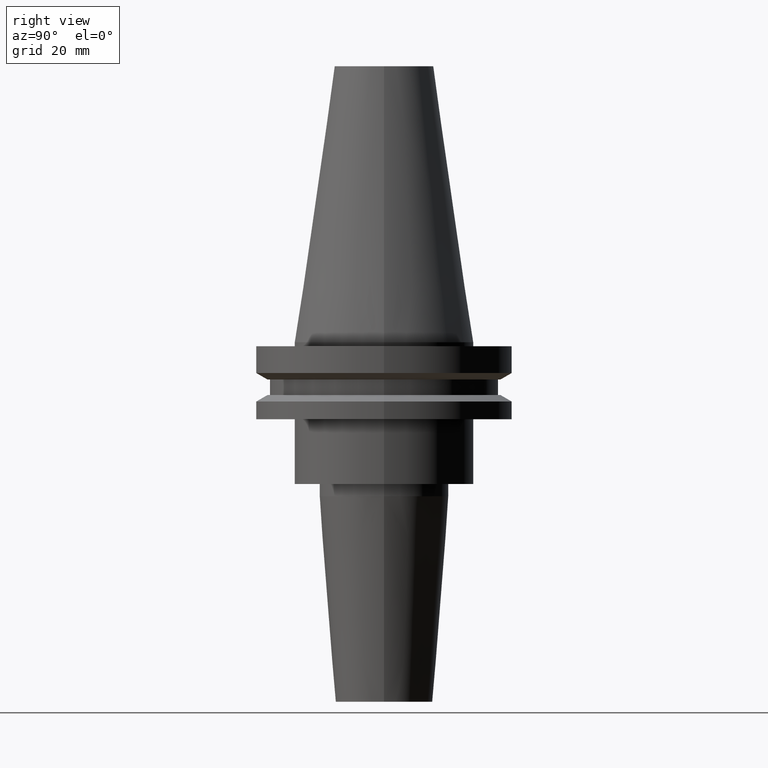
[diagram: clean part render]
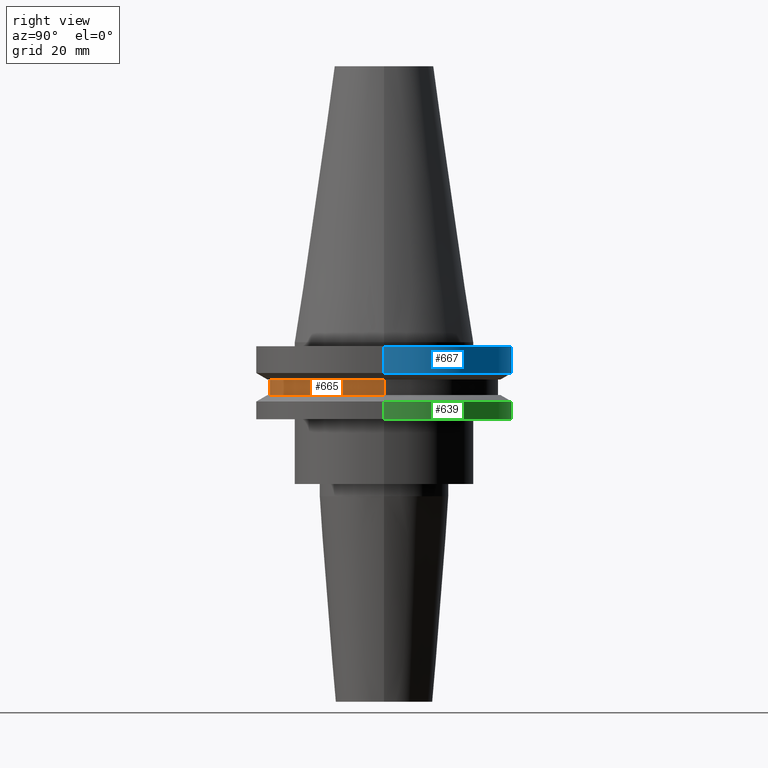
[diagram: same view with three faces highlighted in distinct colors, each labeled with its STEP entity id]
A machine part, right view with three faces highlighted in distinct colors.
Their STEP definitions:

[orange] entity #665 — the highlighted cylindrical surface (partial cylindrical patch) has radius 28.18 mm, axis along (-0, -0, 1).
#3 = ORIENTED_EDGE ( 'NONE', *, *, #603, .T. ) ;
#4 = CARTESIAN_POINT ( 'NONE',  ( 28.17999999999999972, 0.000000000000000000, 68.25000000000000000 ) ) ;
#18 = CARTESIAN_POINT ( 'NONE',  ( 0.000000000000000000, 0.000000000000000000, -9.204999999999991189 ) ) ;
#24 = VECTOR ( 'NONE', #831, 1000.000000000000000 ) ;
#33 = ORIENTED_EDGE ( 'NONE', *, *, #124, .F. ) ;
#57 = FACE_OUTER_BOUND ( 'NONE', #597, .T. ) ;
#62 = LINE ( 'NONE', #565, #24 ) ;
#81 = DIRECTION ( 'NONE',  ( 1.000000000000000000, 0.000000000000000000, 0.000000000000000000 ) ) ;
#124 = EDGE_CURVE ( 'NONE', #332, #497, #62, .T. ) ;
#201 = ORIENTED_EDGE ( 'NONE', *, *, #762, .F. ) ;
#229 = DIRECTION ( 'NONE',  ( 1.000000000000000000, 0.000000000000000000, 0.000000000000000000 ) ) ;
#259 = DIRECTION ( 'NONE',  ( -0.000000000000000000, -0.000000000000000000, 1.000000000000000000 ) ) ;
#270 = VERTEX_POINT ( 'NONE', #291 ) ;
#291 = CARTESIAN_POINT ( 'NONE',  ( 28.17999999999999972, 0.000000000000000000, -9.204999999999991189 ) ) ;
#322 = CYLINDRICAL_SURFACE ( 'NONE', #694, 28.17999999999999972 ) ;
#329 = CIRCLE ( 'NONE', #780, 28.17999999999999972 ) ;
#332 = VERTEX_POINT ( 'NONE', #550 ) ;
#434 = DIRECTION ( 'NONE',  ( -0.000000000000000000, -0.000000000000000000, 1.000000000000000000 ) ) ;
#488 = EDGE_CURVE ( 'NONE', #332, #593, #329, .T. ) ;
#497 = VERTEX_POINT ( 'NONE', #825 ) ;
#515 = DIRECTION ( 'NONE',  ( 1.000000000000000000, 0.000000000000000000, 0.000000000000000000 ) ) ;
#520 = LINE ( 'NONE', #4, #610 ) ;
#538 = ORIENTED_EDGE ( 'NONE', *, *, #488, .T. ) ;
#550 = CARTESIAN_POINT ( 'NONE',  ( -28.17999999999999972, 3.451054679997241634E-15, -13.05499999999999794 ) ) ;
#565 = CARTESIAN_POINT ( 'NONE',  ( -28.17999999999999972, 3.451054679997241634E-15, 68.25000000000000000 ) ) ;
#593 = VERTEX_POINT ( 'NONE', #792 ) ;
#597 = EDGE_LOOP ( 'NONE', ( #33, #538, #3, #201 ) ) ;
#603 = EDGE_CURVE ( 'NONE', #593, #270, #520, .T. ) ;
#606 = DIRECTION ( 'NONE',  ( -0.000000000000000000, -0.000000000000000000, 1.000000000000000000 ) ) ;
#610 = VECTOR ( 'NONE', #785, 1000.000000000000000 ) ;
#665 = ADVANCED_FACE ( 'NONE', ( #57 ), #322, .T. ) ;
#668 = CIRCLE ( 'NONE', #751, 28.17999999999999972 ) ;
#694 = AXIS2_PLACEMENT_3D ( 'NONE', #845, #259, #515 ) ;
#751 = AXIS2_PLACEMENT_3D ( 'NONE', #18, #606, #81 ) ;
#760 = CARTESIAN_POINT ( 'NONE',  ( 0.000000000000000000, 0.000000000000000000, -13.05499999999999794 ) ) ;
#762 = EDGE_CURVE ( 'NONE', #497, #270, #668, .T. ) ;
#780 = AXIS2_PLACEMENT_3D ( 'NONE', #760, #434, #229 ) ;
#785 = DIRECTION ( 'NONE',  ( -0.000000000000000000, -0.000000000000000000, 1.000000000000000000 ) ) ;
#792 = CARTESIAN_POINT ( 'NONE',  ( 28.17999999999999972, 0.000000000000000000, -13.05499999999999794 ) ) ;
#825 = CARTESIAN_POINT ( 'NONE',  ( -28.17999999999999972, 3.451054679997241634E-15, -9.204999999999991189 ) ) ;
#831 = DIRECTION ( 'NONE',  ( -0.000000000000000000, -0.000000000000000000, 1.000000000000000000 ) ) ;
#845 = CARTESIAN_POINT ( 'NONE',  ( 0.000000000000000000, 0.000000000000000000, 68.25000000000000000 ) ) ;

[blue] entity #667 — the highlighted cylindrical surface (partial cylindrical patch) has radius 31.75 mm, axis along (-0, -0, 1).
#5 = EDGE_CURVE ( 'NONE', #88, #25, #452, .T. ) ;
#25 = VERTEX_POINT ( 'NONE', #770 ) ;
#34 = CARTESIAN_POINT ( 'NONE',  ( 0.000000000000000000, 0.000000000000000000, -7.605276606597335842 ) ) ;
#41 = DIRECTION ( 'NONE',  ( 1.000000000000000000, 0.000000000000000000, 0.000000000000000000 ) ) ;
#59 = ORIENTED_EDGE ( 'NONE', *, *, #5, .F. ) ;
#88 = VERTEX_POINT ( 'NONE', #516 ) ;
#89 = LINE ( 'NONE', #801, #119 ) ;
#119 = VECTOR ( 'NONE', #280, 1000.000000000000000 ) ;
#135 = VERTEX_POINT ( 'NONE', #631 ) ;
#151 = CIRCLE ( 'NONE', #723, 31.75000000000000000 ) ;
#154 = DIRECTION ( 'NONE',  ( -0.000000000000000000, -0.000000000000000000, 1.000000000000000000 ) ) ;
#187 = EDGE_CURVE ( 'NONE', #88, #802, #249, .T. ) ;
#222 = DIRECTION ( 'NONE',  ( 1.000000000000000000, 0.000000000000000000, 0.000000000000000000 ) ) ;
#249 = CIRCLE ( 'NONE', #739, 31.75000000000000000 ) ;
#267 = CYLINDRICAL_SURFACE ( 'NONE', #545, 31.75000000000000000 ) ;
#280 = DIRECTION ( 'NONE',  ( -0.000000000000000000, -0.000000000000000000, 1.000000000000000000 ) ) ;
#310 = CARTESIAN_POINT ( 'NONE',  ( 31.75000000000000000, 0.000000000000000000, 68.25000000000000000 ) ) ;
#380 = ORIENTED_EDGE ( 'NONE', *, *, #730, .T. ) ;
#411 = DIRECTION ( 'NONE',  ( -0.000000000000000000, -0.000000000000000000, 1.000000000000000000 ) ) ;
#452 = LINE ( 'NONE', #310, #729 ) ;
#459 = CARTESIAN_POINT ( 'NONE',  ( 0.000000000000000000, 0.000000000000000000, 68.25000000000000000 ) ) ;
#461 = ORIENTED_EDGE ( 'NONE', *, *, #187, .T. ) ;
#464 = DIRECTION ( 'NONE',  ( 1.000000000000000000, 0.000000000000000000, 0.000000000000000000 ) ) ;
#468 = EDGE_CURVE ( 'NONE', #25, #135, #151, .T. ) ;
#516 = CARTESIAN_POINT ( 'NONE',  ( 31.75000000000000000, 0.000000000000000000, -7.605276606597335842 ) ) ;
#545 = AXIS2_PLACEMENT_3D ( 'NONE', #459, #154, #464 ) ;
#574 = DIRECTION ( 'NONE',  ( -0.000000000000000000, -0.000000000000000000, 1.000000000000000000 ) ) ;
#614 = DIRECTION ( 'NONE',  ( -0.000000000000000000, -0.000000000000000000, 1.000000000000000000 ) ) ;
#631 = CARTESIAN_POINT ( 'NONE',  ( -31.75000000000000000, 3.888253587292846476E-15, -1.000000000000000888 ) ) ;
#653 = FACE_OUTER_BOUND ( 'NONE', #813, .T. ) ;
#667 = ADVANCED_FACE ( 'NONE', ( #653 ), #267, .T. ) ;
#723 = AXIS2_PLACEMENT_3D ( 'NONE', #837, #614, #41 ) ;
#729 = VECTOR ( 'NONE', #574, 1000.000000000000000 ) ;
#730 = EDGE_CURVE ( 'NONE', #802, #135, #89, .T. ) ;
#739 = AXIS2_PLACEMENT_3D ( 'NONE', #34, #411, #222 ) ;
#770 = CARTESIAN_POINT ( 'NONE',  ( 31.75000000000000000, 0.000000000000000000, -1.000000000000000888 ) ) ;
#801 = CARTESIAN_POINT ( 'NONE',  ( -31.75000000000000000, 3.888253587292846476E-15, 68.25000000000000000 ) ) ;
#802 = VERTEX_POINT ( 'NONE', #832 ) ;
#813 = EDGE_LOOP ( 'NONE', ( #461, #380, #835, #59 ) ) ;
#832 = CARTESIAN_POINT ( 'NONE',  ( -31.75000000000000000, 3.888253587292846476E-15, -7.605276606597335842 ) ) ;
#835 = ORIENTED_EDGE ( 'NONE', *, *, #468, .F. ) ;
#837 = CARTESIAN_POINT ( 'NONE',  ( 0.000000000000000000, 0.000000000000000000, -1.000000000000000888 ) ) ;

[green] entity #639 — the highlighted cylindrical surface (partial cylindrical patch) has radius 31.75 mm, axis along (-0, -0, 1).
#1 = CARTESIAN_POINT ( 'NONE',  ( 0.000000000000000000, 0.000000000000000000, -14.65472339340266572 ) ) ;
#22 = DIRECTION ( 'NONE',  ( -0.000000000000000000, -0.000000000000000000, 1.000000000000000000 ) ) ;
#71 = DIRECTION ( 'NONE',  ( -0.000000000000000000, -0.000000000000000000, 1.000000000000000000 ) ) ;
#99 = CARTESIAN_POINT ( 'NONE',  ( 31.74999999999999289, 0.000000000000000000, -19.04999999999999716 ) ) ;
#127 = DIRECTION ( 'NONE',  ( -0.000000000000000000, -0.000000000000000000, 1.000000000000000000 ) ) ;
#129 = ORIENTED_EDGE ( 'NONE', *, *, #413, .F. ) ;
#132 = DIRECTION ( 'NONE',  ( 1.000000000000000000, 0.000000000000000000, 0.000000000000000000 ) ) ;
#138 = AXIS2_PLACEMENT_3D ( 'NONE', #529, #377, #132 ) ;
#155 = CARTESIAN_POINT ( 'NONE',  ( -31.75000000000000000, 3.888253587292846476E-15, 68.25000000000000000 ) ) ;
#215 = AXIS2_PLACEMENT_3D ( 'NONE', #395, #71, #333 ) ;
#254 = DIRECTION ( 'NONE',  ( 1.000000000000000000, 0.000000000000000000, 0.000000000000000000 ) ) ;
#279 = ORIENTED_EDGE ( 'NONE', *, *, #660, .F. ) ;
#293 = EDGE_CURVE ( 'NONE', #560, #712, #415, .T. ) ;
#298 = CARTESIAN_POINT ( 'NONE',  ( 31.75000000000000000, 0.000000000000000000, -14.65472339340266572 ) ) ;
#330 = CARTESIAN_POINT ( 'NONE',  ( -31.74999999999999289, 3.888253587292845687E-15, -19.04999999999999716 ) ) ;
#333 = DIRECTION ( 'NONE',  ( 1.000000000000000000, 0.000000000000000000, 0.000000000000000000 ) ) ;
#335 = ORIENTED_EDGE ( 'NONE', *, *, #293, .T. ) ;
#341 = AXIS2_PLACEMENT_3D ( 'NONE', #1, #127, #254 ) ;
#359 = LINE ( 'NONE', #752, #445 ) ;
#365 = DIRECTION ( 'NONE',  ( -0.000000000000000000, -0.000000000000000000, 1.000000000000000000 ) ) ;
#377 = DIRECTION ( 'NONE',  ( -0.000000000000000000, -0.000000000000000000, 1.000000000000000000 ) ) ;
#395 = CARTESIAN_POINT ( 'NONE',  ( 0.000000000000000000, 0.000000000000000000, -19.04999999999999716 ) ) ;
#409 = CARTESIAN_POINT ( 'NONE',  ( -31.75000000000000000, 3.888253587292846476E-15, -14.65472339340266572 ) ) ;
#413 = EDGE_CURVE ( 'NONE', #493, #478, #359, .T. ) ;
#415 = LINE ( 'NONE', #155, #571 ) ;
#445 = VECTOR ( 'NONE', #365, 1000.000000000000000 ) ;
#462 = CIRCLE ( 'NONE', #215, 31.74999999999999289 ) ;
#478 = VERTEX_POINT ( 'NONE', #298 ) ;
#493 = VERTEX_POINT ( 'NONE', #99 ) ;
#529 = CARTESIAN_POINT ( 'NONE',  ( 0.000000000000000000, 0.000000000000000000, 68.25000000000000000 ) ) ;
#543 = EDGE_LOOP ( 'NONE', ( #848, #335, #279, #129 ) ) ;
#552 = EDGE_CURVE ( 'NONE', #493, #560, #462, .T. ) ;
#560 = VERTEX_POINT ( 'NONE', #330 ) ;
#571 = VECTOR ( 'NONE', #22, 1000.000000000000000 ) ;
#639 = ADVANCED_FACE ( 'NONE', ( #717 ), #645, .T. ) ;
#645 = CYLINDRICAL_SURFACE ( 'NONE', #138, 31.75000000000000000 ) ;
#660 = EDGE_CURVE ( 'NONE', #478, #712, #750, .T. ) ;
#712 = VERTEX_POINT ( 'NONE', #409 ) ;
#717 = FACE_OUTER_BOUND ( 'NONE', #543, .T. ) ;
#750 = CIRCLE ( 'NONE', #341, 31.75000000000000000 ) ;
#752 = CARTESIAN_POINT ( 'NONE',  ( 31.75000000000000000, 0.000000000000000000, 68.25000000000000000 ) ) ;
#848 = ORIENTED_EDGE ( 'NONE', *, *, #552, .T. ) ;